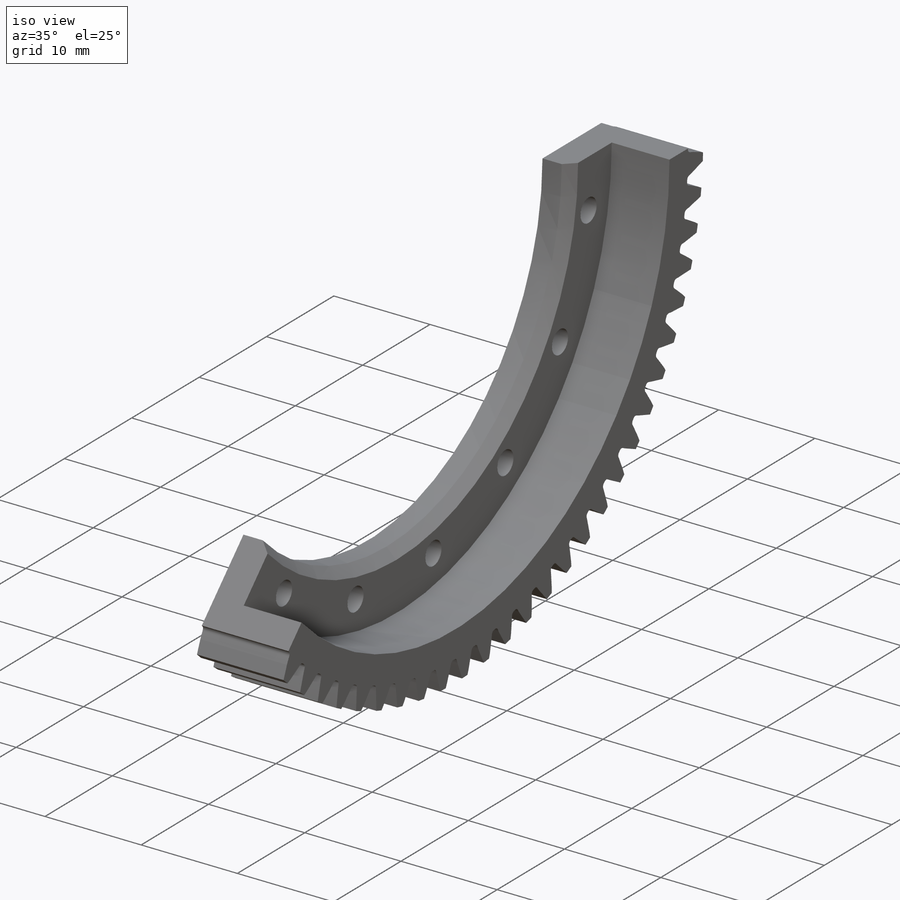
[diagram: iso view]
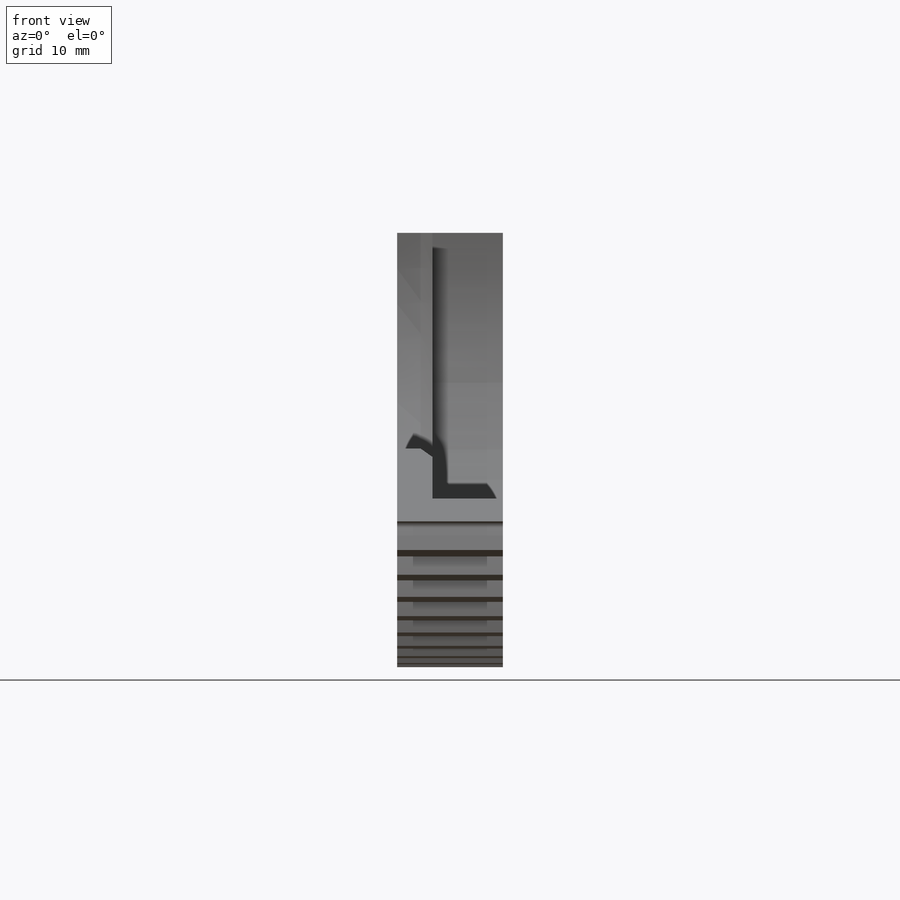
[diagram: front view]
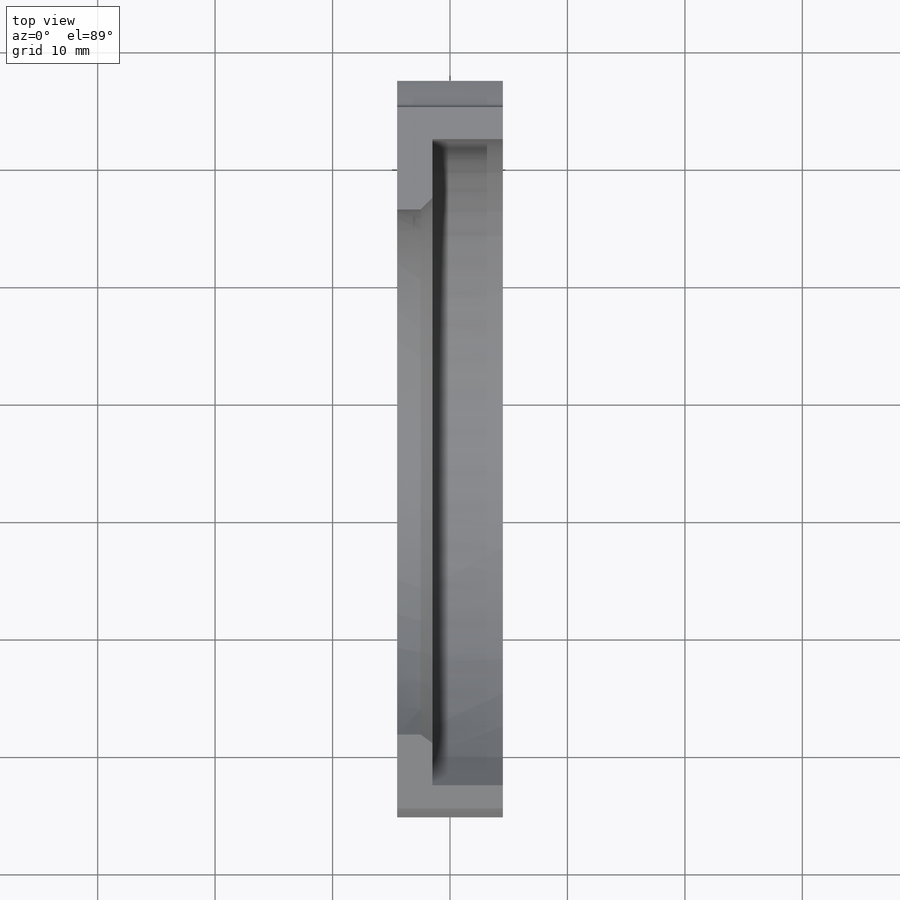
[diagram: top view]
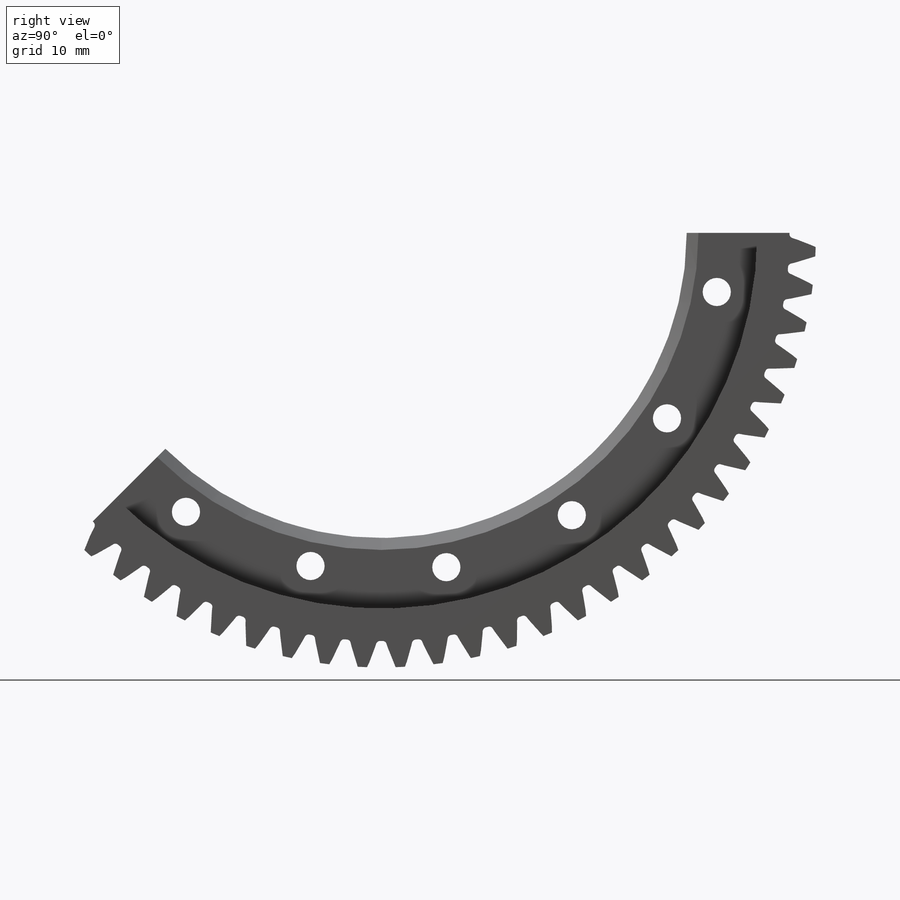
[diagram: right view]
SOLIDWORKS PART (.sldprt)
format: sldprt  version: not decoded by parser v0  size: 731,136 bytes
history: native  units: mm
features: sketch x10, cut_extrude x3, plane x3, revolve x2, material x1, cut_revolve x1, chamfer x1, hole x1, pattern_circular x1, move_body x1, boolean_combine x1 + 1 further entry (+17 scaffold rows collapsed; 6 parser-record rows omitted)
feature tree (49):
  scaffold x17  (default folders/planes/origin — collapsed)
  material  "POM Acetal Copolymer"
  sketch  "Sketch1"  dims[c1.D1=20.0mm c1.D2=8.0mm c2.D1=26.0mm c2.D2=72.0mm c2.D3=9.0mm]
  revolve  "Revolve1"  Angle=360deg
  sketch  "Sketch2"  dims[D1=1.0mm]
  revolve  "Revolve2"  Angle=360deg
  sketch  "Sketch3"
  cut_extrude  "Cut-Extrude1"  Depth=10mm
  sketch  "Sketch4"  dims[c1.D1=~39.372803mm c2.D1=45.0deg]
  cut_extrude  "Cut-Extrude2"  Depth=10mm
  sketch  "Sketch7"  dims[c1.D1=3.0mm c1.D2=26.0mm c1.D3=3.0mm c2.D2=32.0mm c2.D1=6.0mm]
  cut_revolve  "Cut-Revolve1"  Angle=360deg
  chamfer  "Chamfer1"  Distance=1mm Angle=45deg
  hole  "CSK for M2 Countersunk Flat Head Screw2"  Diameter=2.4mm Depth=9mm
  sketch  "Sketch11"  dims[c1.D1=29.0mm c1.D2=~41.318977mm c2.D2=10.0deg]
  sketch  "Sketch10"  dims[hole-wizard template sketch: 55 standard entries collapsed; hole parameters kept: c17.Thru Hole Depth=9.0mm c17.Near C'Sink Dia.=4.4mm c17.D4=~3.666174mm c17.Near C'Sink Angle=90.0deg]
  pattern_circular  "CirPattern2"  Count=6 Angle=23deg
  sketch  "Sketch12"
  cut_extrude  "Cut-Extrude3"  [1 undecoded]
  plane  "Front-Part5_temp"
  plane  "Top-Part5_temp"
  plane  "Right-Part5_temp"
  "Part5_temp"
  parser-record x6  (decoder bookkeeping rows leaked as tree rows — omitted from the tree; the rows remain in map.json)
  move_body  "Body-Move/Copy2"
  boolean_combine  "Combine1"
  sketch  "Sketch13"  dims[D1=0.0mm]
  sketch  "Sketch14"  dims[D1=69.0mm]
decode coverage: 16 of 21 modeling features carry decoded parameters; 1 rows unclassified (native names shown)
note: ~ marks probable driven/reference dimensions
note: 1 parameter value undecoded
note: suppression state not decoded; provenance and decode notes live in map.json
